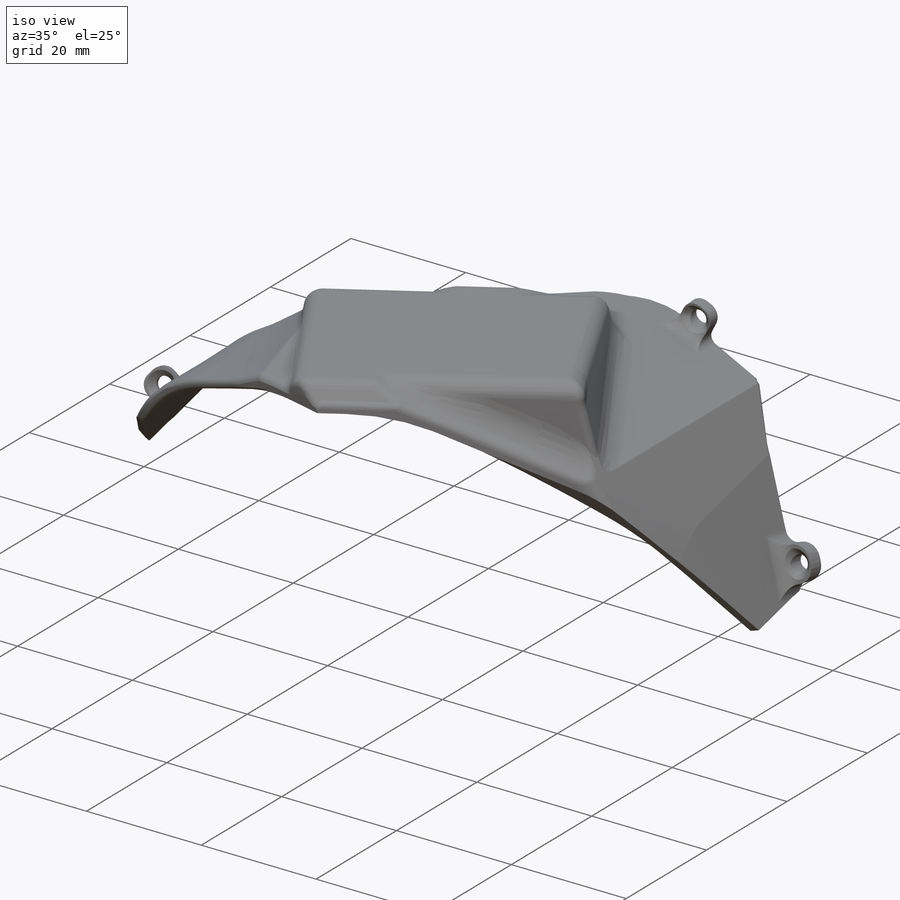
[diagram: iso view]
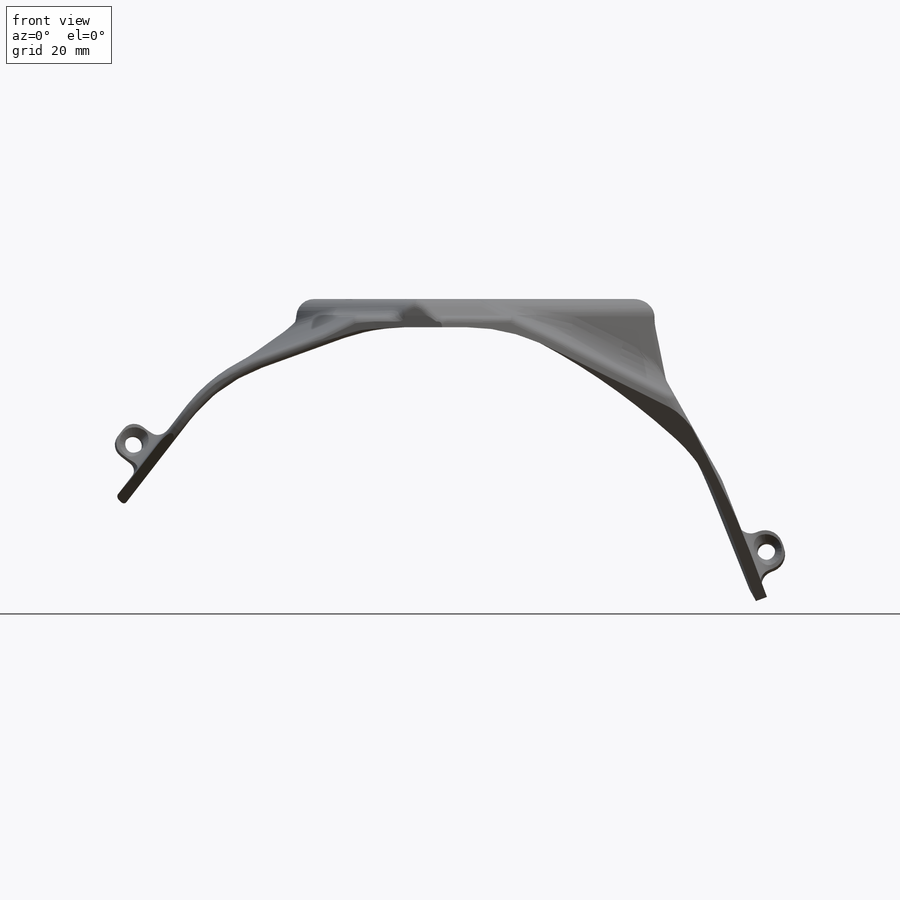
[diagram: front view]
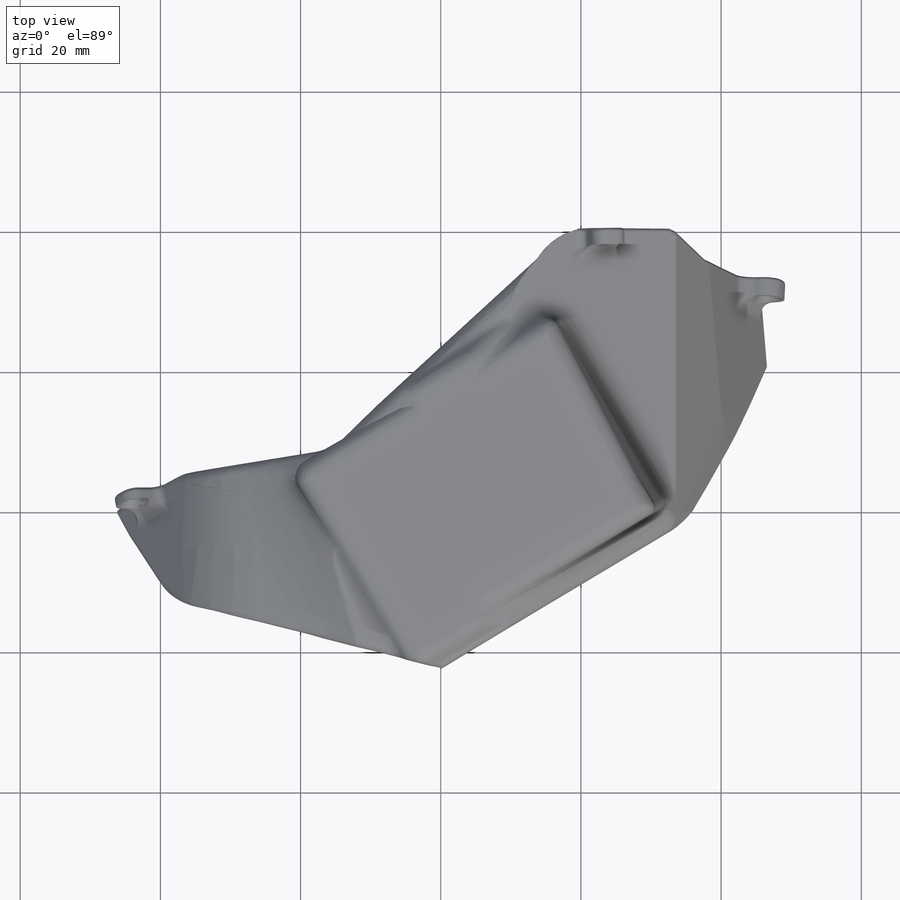
[diagram: top view]
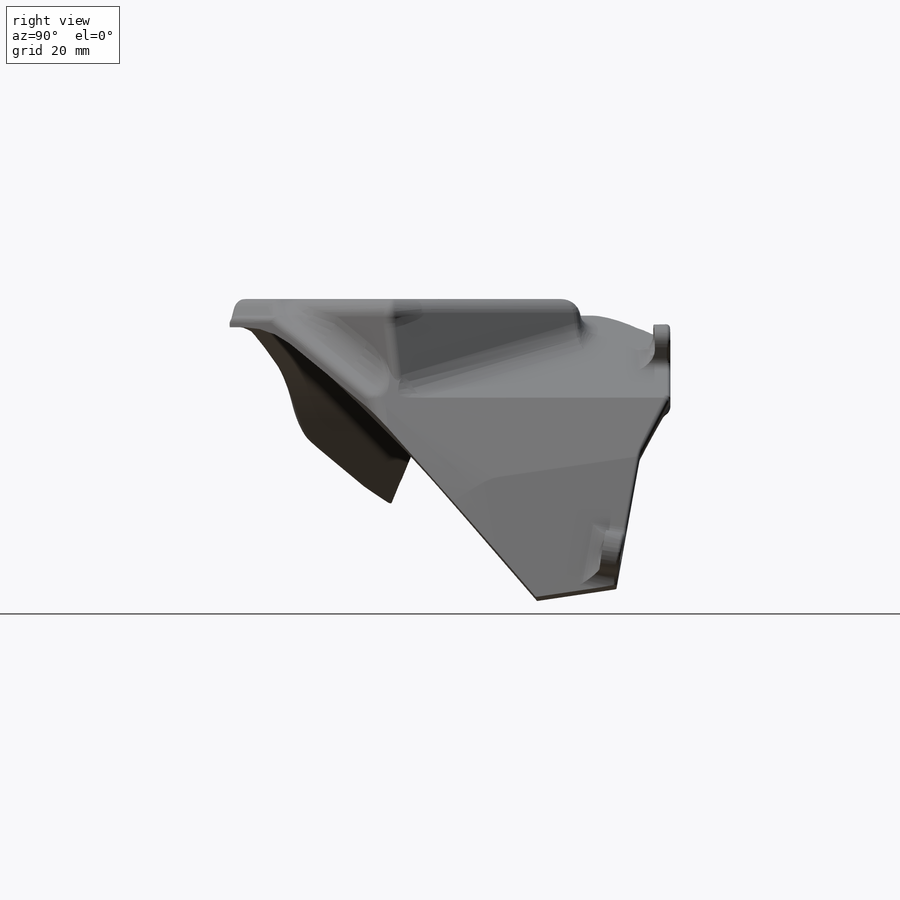
[diagram: right view]
SOLIDWORKS PART (.sldprt)
format: sldprt  version: not decoded by parser v0  size: 2,132,992 bytes
history: native  units: mm
features: fillet x56, sketch x24, cut_extrude x14, extrude x8, chamfer x6, material x1 (+16 scaffold rows collapsed)
feature tree (125):
  scaffold x16  (default folders/planes/origin — collapsed)
  material  "Material <not specified>"
  sketch  "Sketch2"  dims[D1=1.651mm]
  extrude  "Boss-Extrude1"  Depth=62.992mm
  sketch  "Sketch3"
  cut_extrude  "Cut-Extrude1"  Depth=61.214mm
  sketch  "Sketch4"
  cut_extrude  "Cut-Extrude2"  Depth=7.239mm
  sketch  "Sketch6"
  cut_extrude  "Cut-Extrude4"  Depth=30.861mm
  sketch  "Sketch7"  dims[D1=0.0mm]
  extrude  "Boss-Extrude2"  Depth=22.987mm
  sketch  "Sketch8"
  cut_extrude  "Cut-Extrude5"  Depth=27.559mm
  sketch  "Sketch9"  dims[D1=0.0mm]
  sketch  "Sketch10"  dims[D1=0.0mm]
  sketch  "Sketch11"
  cut_extrude  "Cut-Extrude6"  Depth=22.479mm
  sketch  "Sketch12"
  extrude  "Boss-Extrude3"  Depth=5.08mm
  sketch  "Sketch13"  dims[D1=2.54mm]
  cut_extrude  "Cut-Extrude7"  Depth=5.08mm
  fillet  "Fillet1"  Radius=2.54mm
  fillet  "Fillet2"  Radius=2.032mm
  sketch  "Sketch20"  dims[D1=1.778mm]
  extrude  "Boss-Extrude7"  Depth=6.096mm
  sketch  "Sketch21"  dims[D1=0.0mm]
  cut_extrude  "Cut-Extrude10"  [1 undecoded]
  sketch  "Sketch22"  dims[D1=0.0mm]
  extrude  "Boss-Extrude8"  [1 undecoded]
  sketch  "Sketch23"  dims[D1=0.0mm]
  cut_extrude  "Cut-Extrude11"  [1 undecoded]
  sketch  "Sketch24"  dims[D1=0.0mm]
  extrude  "Boss-Extrude9"  Depth=1.651mm
  chamfer  "Chamfer1"  Distance=2.54mm Angle=54deg
  chamfer  "Chamfer2"  Distance=2.54mm Angle=54deg
  chamfer  "Chamfer3"  Distance=2.54mm Angle=54deg
  fillet  "Fillet4"  Radius=2.54mm
  fillet  "Fillet5"  Radius=5.08mm
  fillet  "Fillet6"  Radius=5.08mm
  fillet  "Fillet7"  Radius=1.27mm
  sketch  "Sketch25"  dims[D1=0.0mm]
  cut_extrude  "Cut-Extrude12"  Depth=4.445mm
  fillet  "Fillet8"  Radius=1.27mm
  fillet  "Fillet9"  Radius=1.016mm
  fillet  "Fillet10"  Radius=2.794mm
  fillet  "Fillet11"  Radius=2.794mm
  fillet  "Fillet12"  Radius=22.86mm
  fillet  "Fillet13"  Radius=22.86mm
  fillet  "Fillet14"  Radius=22.86mm
  fillet  "Fillet15"  Radius=1.778mm
  fillet  "Fillet16"  Radius=5.08mm
  fillet  "Fillet17"  Radius=2.54mm
  fillet  "Fillet18"  Radius=2.54mm
  fillet  "Fillet19"  Radius=2.54mm
  fillet  "Fillet20"  Radius=2.54mm
  fillet  "Fillet21"  Radius=2.54mm
  fillet  "Fillet22"  Radius=2.54mm
  fillet  "Fillet23"  Radius=2.54mm
  fillet  "Fillet24"  Radius=2.54mm
  fillet  "Fillet25"  Radius=0.254mm
  fillet  "Fillet26"  Radius=0.254mm
  fillet  "Fillet27"  Radius=1.27mm
  fillet  "Fillet28"  Radius=8.89mm
  fillet  "Fillet29"  Radius=1.27mm
  fillet  "Fillet30"  Radius=1.27mm
  fillet  "Fillet31"  Radius=1.27mm
  fillet  "Fillet33"  Radius=0.762mm
  sketch  "Sketch26"  dims[D1=0.0mm]
  cut_extrude  "Cut-Extrude13"  Depth=4.953mm
  fillet  "Fillet34"  Radius=0.508mm
  fillet  "Fillet35"  Radius=1.27mm
  fillet  "Fillet36"  Radius=0.254mm
  fillet  "Fillet37"  Radius=0.254mm
  fillet  "Fillet39"  Radius=35.56mm
  sketch  "Sketch27"
  extrude  "Boss-Extrude10"  Depth=5.08mm
  sketch  "Sketch28"  dims[D1=2.54mm]
  cut_extrude  "Cut-Extrude14"  Depth=5.08mm
  fillet  "Fillet40"  Radius=2.54mm
  fillet  "Fillet41"  Radius=1.27mm
  fillet  "Fillet42"  Radius=2.032mm
  fillet  "Fillet43"  Radius=0.762mm
  sketch  "Sketch29"
  extrude  "Boss-Extrude11"  Depth=5.08mm
  sketch  "Sketch30"  dims[D1=2.54mm]
  cut_extrude  "Cut-Extrude15"  Depth=5.08mm
  fillet  "Fillet44"  Radius=2.54mm
  fillet  "Fillet47"  Radius=0.254mm
  fillet  "Fillet50"  Radius=1.27mm
  fillet  "Fillet53"  Radius=2.032mm
  fillet  "Fillet54"  Radius=0.508mm
  fillet  "Fillet55"  Radius=0.0762mm
  chamfer  "Chamfer4"  Distance=1.016mm Angle=45deg
  chamfer  "Chamfer5"  Distance=1.016mm Angle=45deg
  chamfer  "Chamfer6"  Distance=1.016mm Angle=45deg
  fillet  "Fillet56"  Radius=81.28mm
  fillet  "Fillet57"  Radius=81.28mm
  fillet  "Fillet58"  Radius=25.4mm
  fillet  "Fillet59"  Radius=25.4mm
  fillet  "Fillet60"  Radius=1.27mm
  fillet  "Fillet61"  Radius=0.127mm
  fillet  "Fillet62"  Radius=0.254mm
  fillet  "Fillet63"  Radius=35.56mm
  fillet  "Fillet64"  Radius=0.508mm
  cut_extrude  "Cut-Extrude16"  [1 undecoded]
  sketch  "Sketch31"  dims[D1=26.543mm D2=12.446mm]
  cut_extrude  "Cut-Extrude17"  [1 undecoded]
  sketch  "Sketch32"  dims[D1=26.035mm D2=14.224mm]
  fillet  "Fillet65"  Radius=0.762mm
decode coverage: 95 of 108 modeling features carry decoded parameters
note: 5 parameter values undecoded
summary: no parameter record found for 5 features
note: suppression state not decoded; provenance and decode notes live in map.json
